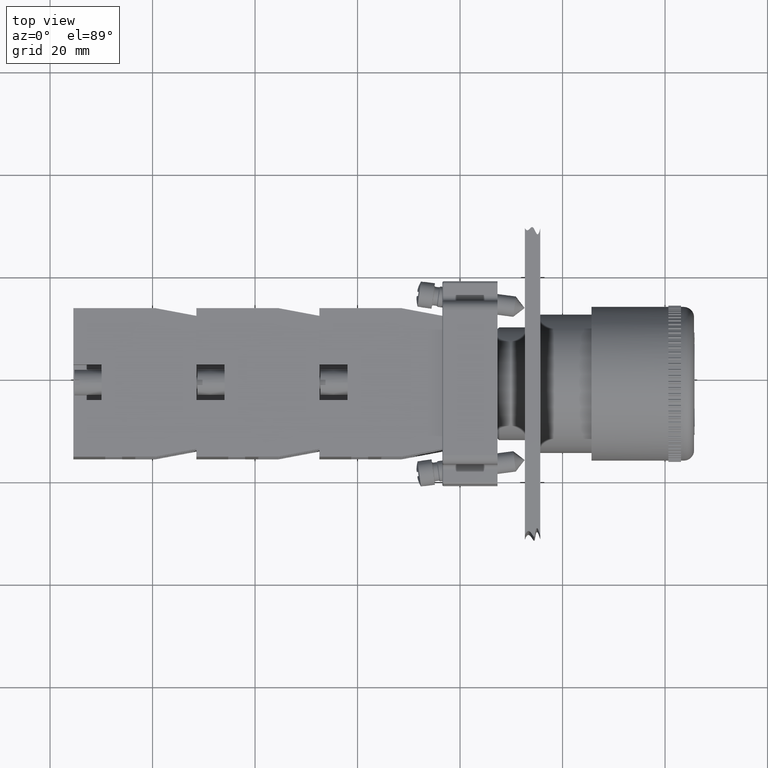
[diagram: clean part render]
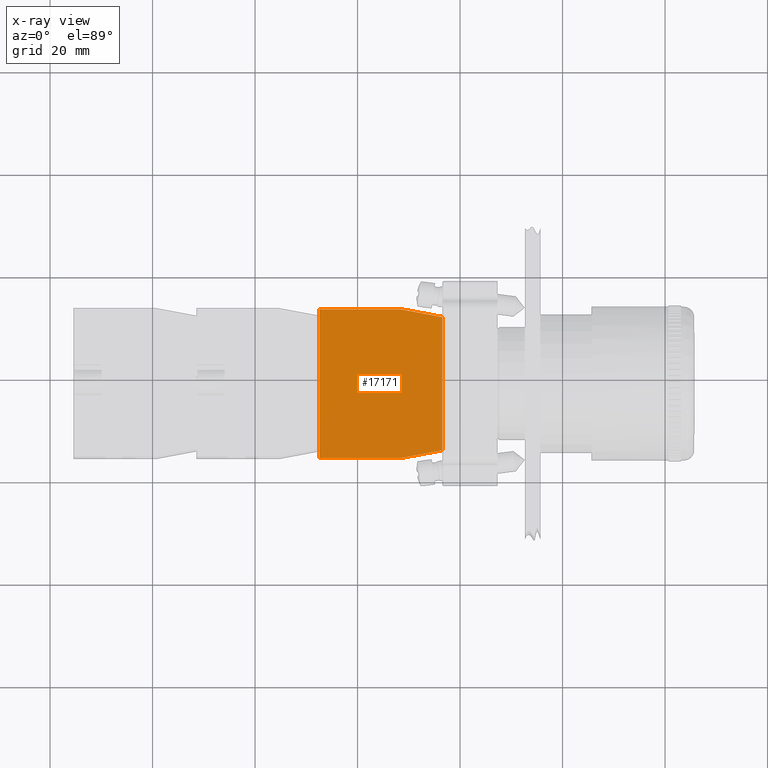
[diagram: x-ray — body ghosted, one internal face saturated and labeled with its STEP entity id]
A machine part, top view, then the same camera in x-ray: the body is ghosted and one INTERNAL B-rep face — a face not visible from any outside direction — is saturated and labeled: STEP entity #17171.
In plain terms, the highlighted planar face has unit normal (-0, 0, 1).
Its self-contained STEP definition (entity closure, byte-faithful):
#15476=CARTESIAN_POINT('',(-44.936741828918471,23.797073323279623,0.0));
#15477=VERTEX_POINT('',#15476);
#15484=CARTESIAN_POINT('',(-44.936741828918457,7.797073323279626,0.0));
#15485=VERTEX_POINT('',#15484);
#15486=CARTESIAN_POINT('',(-44.936741828918457,7.797073323279626,0.0));
#15487=DIRECTION('',(0.0,1.0,0.0));
#15488=VECTOR('',#15487,15.999999999999996);
#15489=LINE('',#15486,#15488);
#15490=EDGE_CURVE('',#15485,#15477,#15489,.T.);
#15667=CARTESIAN_POINT('',(-43.436741828918457,-0.202926676720380,0.0));
#15668=VERTEX_POINT('',#15667);
#15675=CARTESIAN_POINT('',(-17.436741828918457,-0.202926676720377,0.0));
#15676=VERTEX_POINT('',#15675);
#15677=CARTESIAN_POINT('',(-17.436741828918457,-0.202926676720377,0.0));
#15678=DIRECTION('',(-1.0,0.0,0.0));
#15679=VECTOR('',#15678,26.0);
#15680=LINE('',#15677,#15679);
#15681=EDGE_CURVE('',#15676,#15668,#15680,.T.);
#17025=CARTESIAN_POINT('',(-15.936741828918466,23.797073323279626,0.0));
#17026=VERTEX_POINT('',#17025);
#17033=CARTESIAN_POINT('',(-44.936741828918471,23.797073323279623,0.0));
#17034=DIRECTION('',(1.0,0.0,0.0));
#17035=VECTOR('',#17034,29.000000000000007);
#17036=LINE('',#17033,#17035);
#17037=EDGE_CURVE('',#15477,#17026,#17036,.T.);
#17073=CARTESIAN_POINT('',(-15.936741828918466,7.797073323279626,0.0));
#17074=VERTEX_POINT('',#17073);
#17081=CARTESIAN_POINT('',(-15.936741828918466,23.797073323279626,0.0));
#17082=DIRECTION('',(0.0,-1.0,0.0));
#17083=VECTOR('',#17082,16.0);
#17084=LINE('',#17081,#17083);
#17085=EDGE_CURVE('',#17026,#17074,#17084,.T.);
#17113=CARTESIAN_POINT('',(-15.936741828918466,7.797073323279626,0.0));
#17114=DIRECTION('',(-0.184288535050184,-0.982872186934322,0.0));
#17115=VECTOR('',#17114,8.139410298049855);
#17116=LINE('',#17113,#17115);
#17117=EDGE_CURVE('',#17074,#15676,#17116,.T.);
#17130=CARTESIAN_POINT('',(-43.436741828918457,-0.202926676720380,0.0));
#17131=DIRECTION('',(-0.184288535050185,0.982872186934322,0.0));
#17132=VECTOR('',#17131,8.139410298049860);
#17133=LINE('',#17130,#17132);
#17134=EDGE_CURVE('',#15668,#15485,#17133,.T.);
#17158=CARTESIAN_POINT('',(-30.436741828918464,12.124046801833057,0.0));
#17159=DIRECTION('',(0.0,0.0,1.0));
#17160=DIRECTION('',(1.0,0.0,0.0));
#17161=AXIS2_PLACEMENT_3D('',#17158,#17159,#17160);
#17162=PLANE('',#17161);
#17163=ORIENTED_EDGE('',*,*,#17037,.T.);
#17164=ORIENTED_EDGE('',*,*,#17085,.T.);
#17165=ORIENTED_EDGE('',*,*,#17117,.T.);
#17166=ORIENTED_EDGE('',*,*,#15681,.T.);
#17167=ORIENTED_EDGE('',*,*,#17134,.T.);
#17168=ORIENTED_EDGE('',*,*,#15490,.T.);
#17169=EDGE_LOOP('',(#17163,#17164,#17165,#17166,#17167,#17168));
#17170=FACE_OUTER_BOUND('',#17169,.T.);
#17171=ADVANCED_FACE('',(#17170),#17162,.F.);